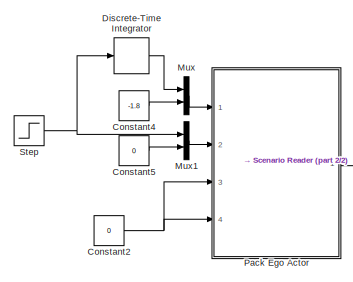
[diagram: root canvas - part 1/2, middle left region]
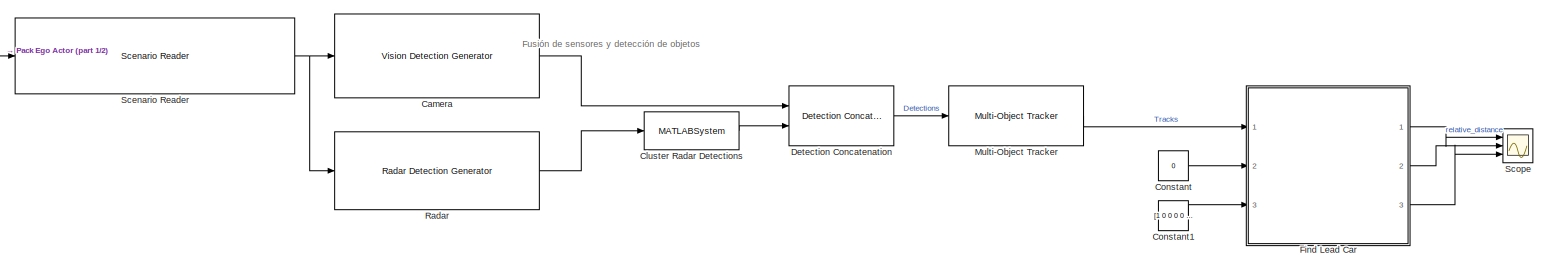
[diagram: root canvas - part 2/2, full width, middle band]
MODEL slx_32dc8f1ea8ab
KIND model
CONFIG AbsTol = auto
CONFIG EnableMultiTasking = off
CONFIG FixedStep = auto
CONFIG MaxStep = auto
CONFIG MinStep = auto
CONFIG RelTol = 1e-3
CONFIG SampleTimeConstraint = Unconstrained
CONFIG Solver = FixedStepDiscrete
CONFIG SolverName = FixedStepDiscrete
CONFIG StartTime = 0.0
CONFIG StopTime = 15
WORKSPACE source: mxarray member
WORKSPACE firstWarning = 1
WORKSPACE originalScenarioChecksum = '158070AB835E3E5B039703679FDCB6FF'
BLOCK [Reference] Camera  REF=drivingscenarioandsensors/Vision Detection Generator
  Ports = [1, 1]
  SourceBlock = drivingscenarioandsensors/Vision Detection Generator
  SourceProductBaseCode = DR
  SourceProductName = Automated Driving Toolbox
  SourceType = visionDetectionGenerator
BLOCK [MATLABSystem] Cluster Radar Detections
  BusName = BusClusterDetections
  BusNameSource = Auto
  ClusterSize = 5
  MaskDisplay = disp(['Detection' char(10) 'Clustering']);\nport_label('input',1,'In');\nport_label('output',1,'Out');
  MaskType = helperClusterDetections
  Ports = [1, 1]
  SimulateUsing = Interpreted execution
  System = helperClusterDetections
BLOCK [Constant] Constant
  Value = 0
BLOCK [Constant] Constant1
  Value = [1 0 0 0 0 0; 0 0 1 0 0 0]
BLOCK [Constant] Constant2
  Value = 0
BLOCK [Constant] Constant4
  Value = -1.8
BLOCK [Constant] Constant5
  Value = 0
BLOCK [Reference] Detection Concatenation  REF=drivinglib/Detection Concatenation
  Ports = [2, 1]
  SourceBlock = drivinglib/Detection Concatenation
  SourceProductBaseCode = DR
  SourceProductName = Automated Driving Toolbox
  SourceType = driving.internal.DetectionConcatenation
BLOCK [DiscreteIntegrator] Discrete-Time Integrator
  ICPrevOutput = DiscIntNeverNeededParam
  ICPrevScaledInput = DiscIntNeverNeededParam
  InitialCondition = 10
  InitialConditionSetting = Auto
  Ports = [1, 1]
  SampleTime = -1
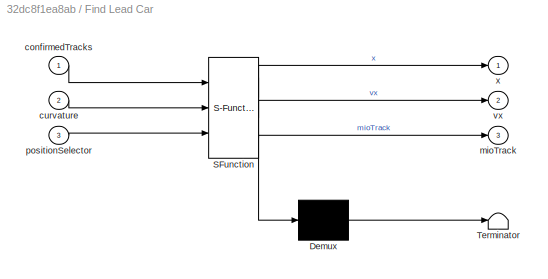
BLOCK [SubSystem] Find Lead Car
  ErrorFcn = Stateflow.Translate.translate
  PermitHierarchicalResolution = ExplicitOnly
  Ports = [3, 3]
  RequestExecContextInheritance = off
  SFBlockType = MATLAB Function
  TreatAsAtomicUnit = on
BLOCK [Demux] Find Lead Car/ Demux 
  Outputs = 1
  Ports = [1, 1]
BLOCK [S-Function] Find Lead Car/ SFunction 
  EnableBusSupport = on
  FunctionName = sf_sfun
  PortCounts = [3 4]
  Ports = [3, 4]
  SFcnIsStateOwnerBlock = off
  SFunctionDeploymentMode = off
  Tag = Stateflow S-Function 1
BLOCK [Terminator] Find Lead Car/ Terminator 
BLOCK [Inport] Find Lead Car/confirmedTracks
  IconDisplay = Port number
BLOCK [Inport] Find Lead Car/curvature
  IconDisplay = Port number
  Port = 2
BLOCK [Outport] Find Lead Car/mioTrack
  IconDisplay = Port number
  Port = 3
  VectorParamsAs1DForOutWhenUnconnected = off
BLOCK [Inport] Find Lead Car/positionSelector
  IconDisplay = Port number
  Port = 3
BLOCK [Outport] Find Lead Car/vx
  IconDisplay = Port number
  Port = 2
  VectorParamsAs1DForOutWhenUnconnected = off
BLOCK [Outport] Find Lead Car/x
  IconDisplay = Port number
  VectorParamsAs1DForOutWhenUnconnected = off
BLOCK [Reference] Multi-Object Tracker  REF=drivinglib/Multi-Object Tracker
  Ports = [1, 1]
  SourceBlock = drivinglib/Multi-Object Tracker
  SourceProductBaseCode = DR
  SourceProductName = Automated Driving Toolbox
  SourceType = multiObjectTracker
BLOCK [Mux] Mux
  DisplayOption = bar
  Inputs = 2
  Ports = [2, 1]
BLOCK [Mux] Mux1
  DisplayOption = bar
  Inputs = 2
  Ports = [2, 1]
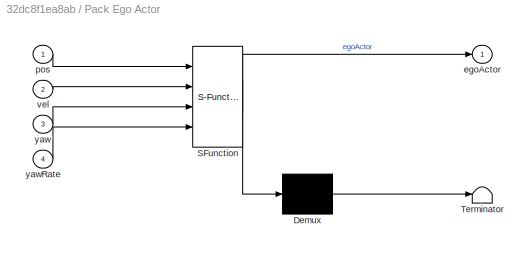
BLOCK [SubSystem] Pack Ego Actor
  ErrorFcn = Stateflow.Translate.translate
  PermitHierarchicalResolution = ExplicitOnly
  Ports = [4, 1]
  RequestExecContextInheritance = off
  SFBlockType = MATLAB Function
  TreatAsAtomicUnit = on
BLOCK [Demux] Pack Ego Actor/ Demux 
  Outputs = 1
  Ports = [1, 1]
BLOCK [S-Function] Pack Ego Actor/ SFunction 
  EnableBusSupport = on
  FunctionName = sf_sfun
  PortCounts = [4 2]
  Ports = [4, 2]
  SFcnIsStateOwnerBlock = off
  SFunctionDeploymentMode = off
  Tag = Stateflow S-Function 5
BLOCK [Terminator] Pack Ego Actor/ Terminator 
BLOCK [Outport] Pack Ego Actor/egoActor
  IconDisplay = Port number
  VectorParamsAs1DForOutWhenUnconnected = off
BLOCK [Inport] Pack Ego Actor/pos
  IconDisplay = Port number
BLOCK [Inport] Pack Ego Actor/vel
  IconDisplay = Port number
  Port = 2
BLOCK [Inport] Pack Ego Actor/yaw
  IconDisplay = Port number
  Port = 3
BLOCK [Inport] Pack Ego Actor/yawRate
  IconDisplay = Port number
  Port = 4
BLOCK [Reference] Radar  REF=drivingscenarioandsensors/Radar Detection Generator
  Ports = [1, 1]
  SourceBlock = drivingscenarioandsensors/Radar Detection Generator
  SourceProductBaseCode = DR
  SourceProductName = Automated Driving Toolbox
  SourceType = radarDetectionGenerator
BLOCK [Reference] Scenario Reader  REF=drivingscenarioandsensors/Scenario Reader
  Ports = [1, 1]
  SourceBlock = drivingscenarioandsensors/Scenario Reader
  SourceProductBaseCode = DR
  SourceProductName = Automated Driving Toolbox
  SourceType = driving.scenario.internal.ScenarioReader
BLOCK [Scope] Scope
  Floating = off
  NumInputPorts = 3
  Ports = [3]
  ScopeSpecificationString = Simulink.scopes.TimeScopeBlockCfg('CurrentConfiguration', extmgr.ConfigurationSet(extmgr.Configuration('Core','General UI',true),extmgr.Configuration('Core','Source UI',true),extmgr.Configuration('Sources','WiredSimulink',true),extmgr.Configuration('Visuals','Time Domain',true,'SerializedDisplays',{struct('MinYLimReal','3.27254','MaxYLimReal','68.756','YLabelReal','','MinYLimMag','3.27254','MaxYLi...<+2729ch>
BLOCK [Step] Step
  After = 20
  Before = 30
  SampleTime = 0
  Time = 3
ANNOTATION (root): Fusión de sensores y detección de objetos
LINE Camera:1 -> Detection Concatenation:1
LINE Cluster Radar Detections:1 -> Detection Concatenation:2
LINE Constant1:1 -> Find Lead Car:3
NET Constant2:1 -> Pack Ego Actor:3, Pack Ego Actor:4
LINE Constant4:1 -> Mux:2
LINE Constant5:1 -> Mux1:2
LINE Constant:1 -> Find Lead Car:2
LINE Detection Concatenation:1 -> Multi-Object Tracker:1
LINE Discrete-Time Integrator:1 -> Mux:1
LINE Find Lead Car:1 -> Scope:1
LINE Find Lead Car:2 -> Scope:2
LINE Find Lead Car:3 -> Scope:3
LINE Multi-Object Tracker:1 -> Find Lead Car:1
LINE Mux1:1 -> Pack Ego Actor:2
LINE Mux:1 -> Pack Ego Actor:1
LINE Pack Ego Actor:1 -> Scenario Reader:1
LINE Radar:1 -> Cluster Radar Detections:1
NET Scenario Reader:1 -> Camera:1, Radar:1
NET Step:1 -> Discrete-Time Integrator:1, Mux1:1
note: NET lines group one-source signal fan-out (src -> all destinations, sorted); 1:1 wires keep LINE
CHART Find Lead Car states=1 transitions=1
  STATE_LABEL 'eML_blk_kernel()'
  STATE_LABEL "SCRIPT:\nfunction [x,vx,mioTrack] = findLeadCar(confirmedTracks, curvature, positionSelector)\n% This function finds the lead car: a car in front of the ego car that\n% satisfies all the criteria below:\n% * Within the ego car's lane.\n% * In front of the ego car.\n% * Closest to the ego car.\n\n% Important notes:\n% 1. If you change state definition, change the following:\n%       State = [x;vx;y;vy;z;vz] ...<+1713ch>"
CHART Pack Ego Actor states=1 transitions=1
  STATE_LABEL 'eML_blk_kernel()'
  STATE_LABEL "SCRIPT:\nfunction egoActor = packEgo(pos,vel,yaw,yawRate)\n% Pack ego information into a single ego actor bus\n%\n% Imoprtant note:\n% Output is a bus of type BusActorsActors. This is the same bus used by the\n% Scenario Reader to output an individual actor. If you change the\n% output bus name of Scenario Reader, change the output bus name here\n% as well by clicking on 'Edit Data' in the menu above.\n\neg...<+215ch>"
